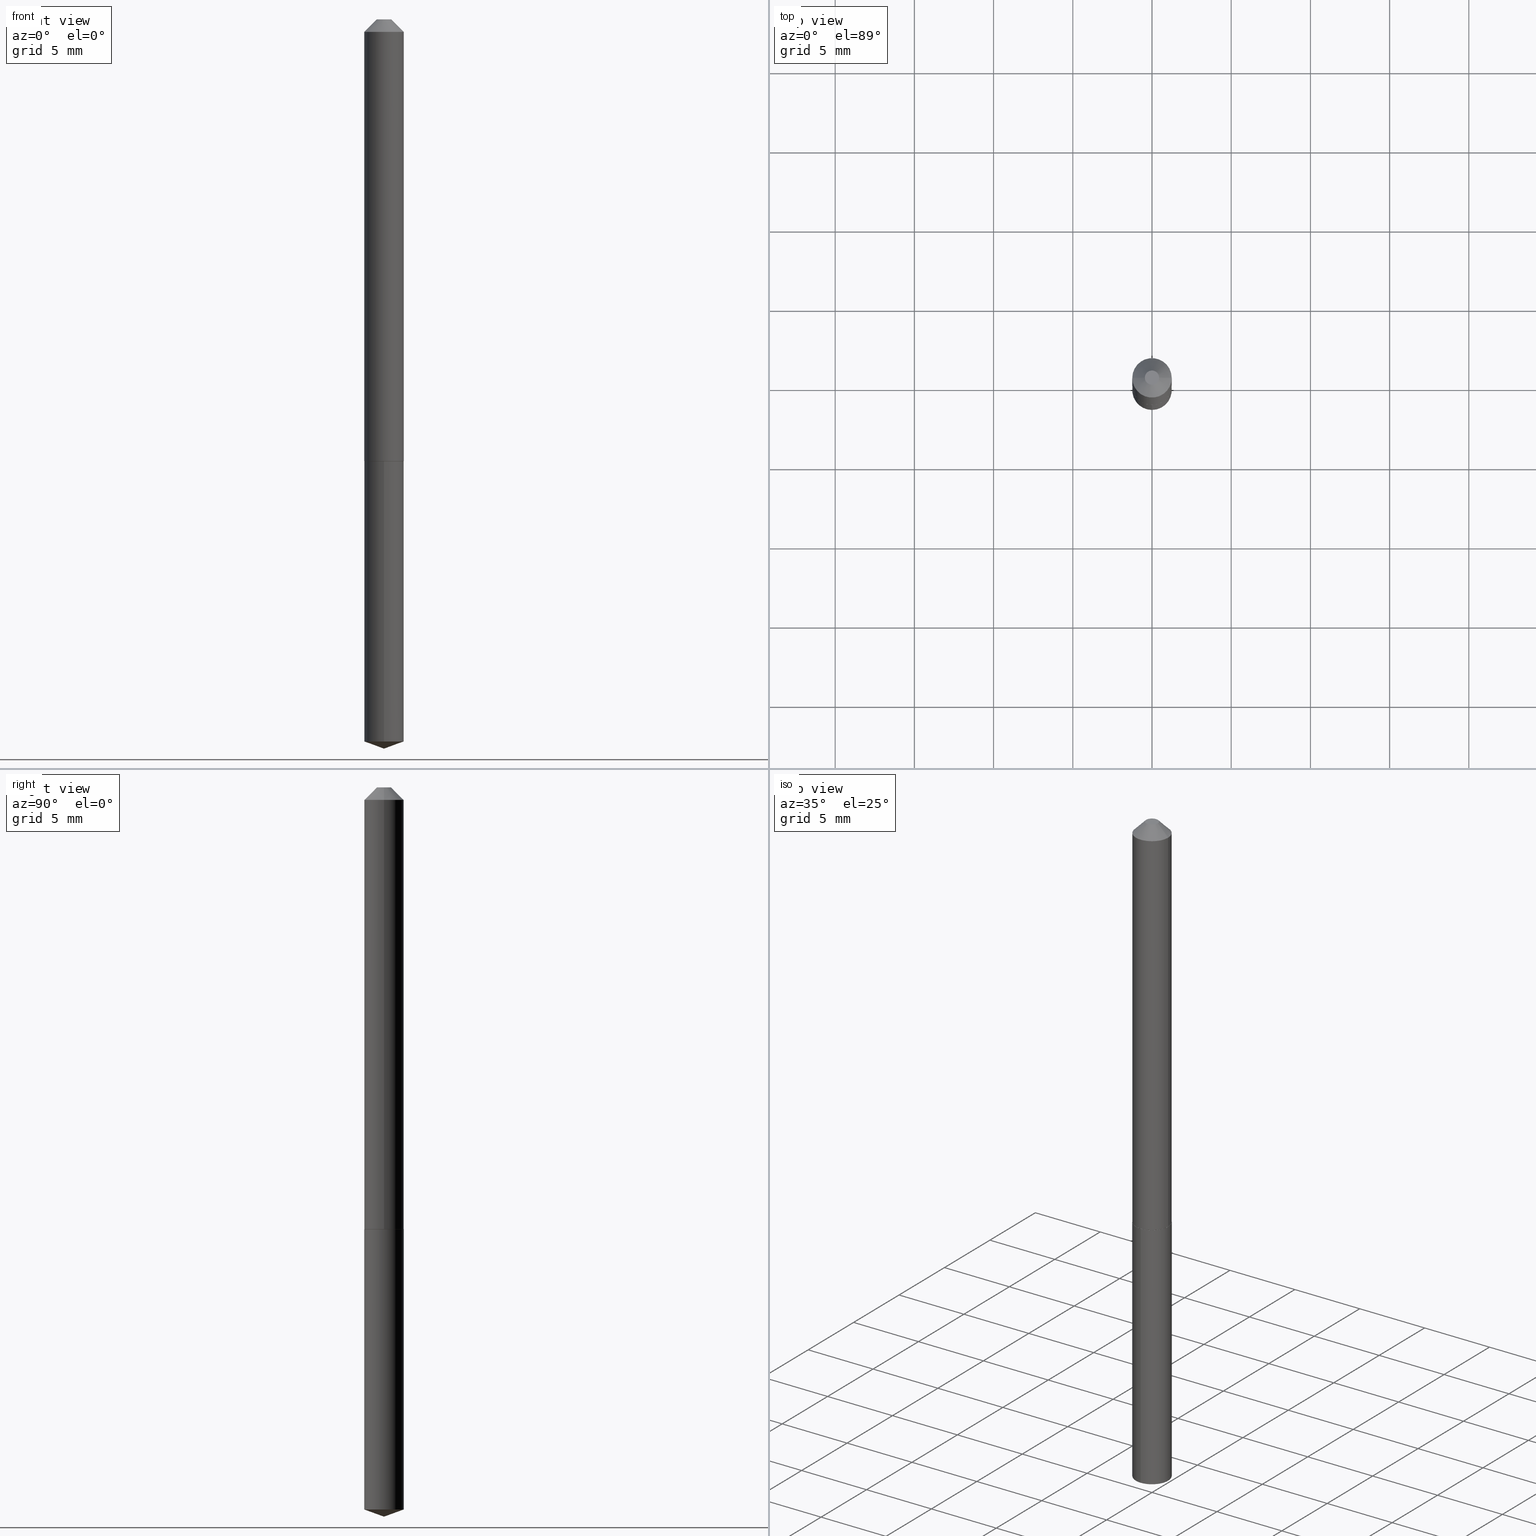
[diagram: canonical four-view strip — front | top / right | iso, engineering-drawing reading convention]
A machine part, canonical four-view strip (front | top / right | iso — engineering-drawing reading convention). The complete STEP part file that produces these views, byte-faithful:
ISO-10303-21;
HEADER;
FILE_DESCRIPTION (( 'STEP AP203' ),
    '1' );
FILE_NAME ('56040.STEP',
    '2024-04-22T19:57:57',
    ( '' ),
    ( '' ),
    'SwSTEP 2.0',
    'SolidWorks 2023',
    '' );
FILE_SCHEMA (( 'CONFIG_CONTROL_DESIGN' ));
ENDSEC;

DATA;
#1 = CIRCLE ( 'NONE', #234, 0.04900000000000000189 ) ;
#2 = ADVANCED_FACE ( 'NONE', ( #137 ), #263, .T. ) ;
#3 = ADVANCED_FACE ( 'NONE', ( #141 ), #42, .T. ) ;
#4 = ORIENTED_EDGE ( 'NONE', *, *, #57, .F. ) ;
#5 = APPLICATION_PROTOCOL_DEFINITION ( 'international standard', 'config_control_design', 1994, #352 ) ;
#6 = CARTESIAN_POINT ( 'NONE',  ( 0.04900000000000000883, -4.512739630454761261E-16, -0.03125000000000020123 ) ) ;
#7 = CIRCLE ( 'NONE', #381, 0.01775000000000000189 ) ;
#8 = DIRECTION ( 'NONE',  ( -2.445468806185136597E-29, 3.491481338843145583E-15, 1.000000000000000000 ) ) ;
#9 = DIRECTION ( 'NONE',  ( -6.982962677686267499E-15, -1.000000000000000000, 3.475157955500608196E-15 ) ) ;
#10 = DIRECTION ( 'NONE',  ( -2.445468806185136597E-29, 3.491481338843145583E-15, 1.000000000000000000 ) ) ;
#11 = ORIENTED_EDGE ( 'NONE', *, *, #184, .F. ) ;
#12 = DIRECTION ( 'NONE',  ( -6.982962677686265922E-15, -1.000000000000000000, 5.575199987069924823E-15 ) ) ;
#13 = AXIS2_PLACEMENT_3D ( 'NONE', #41, #16, #311 ) ;
#14 = CC_DESIGN_APPROVAL ( #323, ( #370 ) ) ;
#15 = VERTEX_POINT ( 'NONE', #312 ) ;
#16 = DIRECTION ( 'NONE',  ( -2.445468108961849086E-29, 3.491482337306576888E-15, 1.000000000000000000 ) ) ;
#17 = CARTESIAN_POINT ( 'NONE',  ( 2.685124749191280284E-29, -3.833646510049774087E-15, -1.098000000000000087 ) ) ;
#18 = CC_DESIGN_DATE_AND_TIME_ASSIGNMENT ( #145, #21, ( #270 ) ) ;
#19 = FACE_OUTER_BOUND ( 'NONE', #224, .T. ) ;
#20 = DIRECTION ( 'NONE',  ( 6.982962677686265922E-15, 1.000000000000000000, -3.491482337306577282E-15 ) ) ;
#21 = DATE_TIME_ROLE ( 'classification_date' ) ;
#22 =( NAMED_UNIT ( * ) PLANE_ANGLE_UNIT ( ) SI_UNIT ( $, .RADIAN. ) );
#23 = ORIENTED_EDGE ( 'NONE', *, *, #276, .T. ) ;
#24 = AXIS2_PLACEMENT_3D ( 'NONE', #67, #214, #128 ) ;
#25 = PRODUCT_DEFINITION_FORMATION_WITH_SPECIFIED_SOURCE ( 'ANY', '', #357, .NOT_KNOWN. ) ;
#26 = CALENDAR_DATE ( 2024, 22, 4 ) ;
#27 = CARTESIAN_POINT ( 'NONE',  ( 0.04900000000000000883, -4.452731937296541456E-16, -0.03125000000000020123 ) ) ;
#28 = CALENDAR_DATE ( 2024, 22, 4 ) ;
#29 = DATE_AND_TIME ( #26, #105 ) ;
#30 = APPLICATION_PROTOCOL_DEFINITION ( 'international standard', 'config_control_design', 1994, #165 ) ;
#31 = CARTESIAN_POINT ( 'NONE',  ( 3.481659405224759258E-16, 0.04899999999999617162, -1.098000000000000309 ) ) ;
#32 = EDGE_CURVE ( 'NONE', #74, #254, #134, .T. ) ;
#33 = AXIS2_PLACEMENT_3D ( 'NONE', #372, #10, #314 ) ;
#34 = AXIS2_PLACEMENT_3D ( 'NONE', #226, #347, #78 ) ;
#35 = APPROVAL ( #261, 'UNSPECIFIED' ) ;
#36 = CARTESIAN_POINT ( 'NONE',  ( 0.04900000000000014067, -4.174065940586980694E-15, -1.097500000000000142 ) ) ;
#37 = ADVANCED_FACE ( 'NONE', ( #107 ), #268, .T. ) ;
#38 = AXIS2_PLACEMENT_3D ( 'NONE', #307, #284, #220 ) ;
#39 = DIRECTION ( 'NONE',  ( -2.445468806185136597E-29, 3.491481338843145583E-15, 1.000000000000000000 ) ) ;
#40 = ORIENTED_EDGE ( 'NONE', *, *, #247, .F. ) ;
#41 = CARTESIAN_POINT ( 'NONE',  ( 2.685124749191280284E-29, -3.833646510049774087E-15, -1.098000000000000087 ) ) ;
#42 = CYLINDRICAL_SURFACE ( 'NONE', #364, 0.04900000000000007822 ) ;
#43 = CARTESIAN_POINT ( 'NONE',  ( 7.642090019328601786E-31, -1.091087918388490144E-16, -0.03125000000000020123 ) ) ;
#44 = AXIS2_PLACEMENT_3D ( 'NONE', #245, #48, #9 ) ;
#45 = ADVANCED_FACE ( 'NONE', ( #305 ), #170, .F. ) ;
#46 = APPROVAL_PERSON_ORGANIZATION ( #365, #323, #387 ) ;
#47 = ORIENTED_EDGE ( 'NONE', *, *, #238, .T. ) ;
#48 = DIRECTION ( 'NONE',  ( -2.445468108961849086E-29, 3.491482337306576888E-15, 1.000000000000000000 ) ) ;
#49 = CARTESIAN_POINT ( 'NONE',  ( 2.246126659432004262E-48, -3.206873584422743567E-34, -9.184850993605186494E-20 ) ) ;
#50 = CARTESIAN_POINT ( 'NONE',  ( -0.04900000000000014067, -3.483734828857902394E-15, -1.097500000000000142 ) ) ;
#51 = VERTEX_POINT ( 'NONE', #151 ) ;
#52 = PERSON_AND_ORGANIZATION ( #361, #282 ) ;
#53 = CARTESIAN_POINT ( 'NONE',  ( 2.685124749191280284E-29, -3.833646510049774087E-15, -1.098000000000000087 ) ) ;
#54 = PERSON_AND_ORGANIZATION ( #361, #282 ) ;
#55 = APPROVAL_DATE_TIME ( #29, #35 ) ;
#56 = DIRECTION ( 'NONE',  ( -2.445468806185136597E-29, 3.491481338843145583E-15, 1.000000000000000000 ) ) ;
#57 = EDGE_CURVE ( 'NONE', #74, #96, #390, .T. ) ;
#58 = CC_DESIGN_APPROVAL ( #354, ( #25 ) ) ;
#59 = UNCERTAINTY_MEASURE_WITH_UNIT (LENGTH_MEASURE( 1.000000000000000082E-05 ), #89, 'distance_accuracy_value', 'NONE');
#60 = ADVANCED_FACE ( 'NONE', ( #321 ), #273, .T. ) ;
#61 = ORIENTED_EDGE ( 'NONE', *, *, #62, .T. ) ;
#62 = EDGE_CURVE ( 'NONE', #51, #66, #144, .T. ) ;
#63 = ORIENTED_EDGE ( 'NONE', *, *, #201, .T. ) ;
#64 = CARTESIAN_POINT ( 'NONE',  ( 4.432410947493351907E-29, -6.328311736368170535E-15, -1.812500000000000222 ) ) ;
#65 = EDGE_LOOP ( 'NONE', ( #368, #371, #129, #40 ) ) ;
#66 = VERTEX_POINT ( 'NONE', #351 ) ;
#67 = CARTESIAN_POINT ( 'NONE',  ( 2.683902014788188043E-29, -3.831900769380352584E-15, -1.097500000000000142 ) ) ;
#68 = CARTESIAN_POINT ( 'NONE',  ( 0.04900000000000007822, -3.421651712066276171E-16, 2.389326620140012644E-30 ) ) ;
#69 = DIRECTION ( 'NONE',  ( -2.445468806185136597E-29, 3.491481338843145583E-15, 1.000000000000000000 ) ) ;
#70 = EDGE_CURVE ( 'NONE', #213, #110, #82, .T. ) ;
#71 = DIRECTION ( 'NONE',  ( 1.000000000000000000, -6.982962677686267499E-15, 4.876164886021178738E-29 ) ) ;
#72 = VERTEX_POINT ( 'NONE', #36 ) ;
#73 = FACE_OUTER_BOUND ( 'NONE', #338, .T. ) ;
#74 = VERTEX_POINT ( 'NONE', #334 ) ;
#75 = CIRCLE ( 'NONE', #121, 0.04900000000000014067 ) ;
#76 = CYLINDRICAL_SURFACE ( 'NONE', #215, 0.04900000000000000189 ) ;
#77 = ORIENTED_EDGE ( 'NONE', *, *, #114, .F. ) ;
#78 = DIRECTION ( 'NONE',  ( -6.982962677686265922E-15, -1.000000000000000000, 2.787599993534962411E-15 ) ) ;
#79 = ORIENTED_EDGE ( 'NONE', *, *, #108, .T. ) ;
#80 = PERSON_AND_ORGANIZATION ( #361, #282 ) ;
#81 = PERSON_AND_ORGANIZATION_ROLE ( 'creator' ) ;
#82 = LINE ( 'NONE', #31, #104 ) ;
#83 = AXIS2_PLACEMENT_3D ( 'NONE', #302, #336, #194 ) ;
#84 = AXIS2_PLACEMENT_3D ( 'NONE', #149, #179, #262 ) ;
#85 = PERSON_AND_ORGANIZATION_ROLE ( 'creator' ) ;
#86 = EDGE_CURVE ( 'NONE', #51, #72, #308, .T. ) ;
#87 = PRODUCT_DEFINITION_SHAPE ( 'NONE', 'NONE',  #370 ) ;
#88 = PERSON_AND_ORGANIZATION ( #361, #282 ) ;
#89 =( CONVERSION_BASED_UNIT ( 'INCH', #292 ) LENGTH_UNIT ( ) NAMED_UNIT ( #385 ) );
#90 = DIRECTION ( 'NONE',  ( -2.438088387897960049E-29, 3.491481338843145188E-15, 1.000000000000000000 ) ) ;
#91 = EDGE_CURVE ( 'NONE', #15, #272, #331, .T. ) ;
#92 = CIRCLE ( 'NONE', #113, 0.04850000000000011247 ) ;
#93 = LOCAL_TIME ( 15, 57, 57.00000000000000000, #291 ) ;
#94 = EDGE_LOOP ( 'NONE', ( #152, #47, #288 ) ) ;
#95 = MANIFOLD_SOLID_BREP ( 'Body-Move/Copy2[2]', #97 ) ;
#96 = VERTEX_POINT ( 'NONE', #6 ) ;
#97 = CLOSED_SHELL ( 'NONE', ( #266, #3, #37, #360, #60, #160, #349, #343 ) ) ;
#98 = EDGE_CURVE ( 'NONE', #66, #96, #257, .T. ) ;
#99 = MANIFOLD_SOLID_BREP ( 'Body-Move/Copy2[1]', #281 ) ;
#100 = CARTESIAN_POINT ( 'NONE',  ( 3.481659405224930342E-16, 0.04899999999999615774, -1.098000000000000309 ) ) ;
#101 = ORIENTED_EDGE ( 'NONE', *, *, #276, .F. ) ;
#102 = CARTESIAN_POINT ( 'NONE',  ( 4.432412492021651000E-29, -6.328309543742475806E-15, -1.812500000000000222 ) ) ;
#103 = ORIENTED_EDGE ( 'NONE', *, *, #32, .F. ) ;
#104 = VECTOR ( 'NONE', #363, 39.37007874015748143 ) ;
#105 = LOCAL_TIME ( 15, 57, 57.00000000000000000, #325 ) ;
#106 = CARTESIAN_POINT ( 'NONE',  ( -0.01775000000000000536, 1.785019834483547303E-16, -9.184850993710916437E-20 ) ) ;
#107 = FACE_OUTER_BOUND ( 'NONE', #157, .T. ) ;
#108 = EDGE_CURVE ( 'NONE', #72, #51, #75, .T. ) ;
#109 = CARTESIAN_POINT ( 'NONE',  ( 2.685124749191280284E-29, -3.833646510049774087E-15, -1.098000000000000087 ) ) ;
#110 = VERTEX_POINT ( 'NONE', #100 ) ;
#111 = DIRECTION ( 'NONE',  ( -0.7071067811865414665, 7.493145998870332072E-15, 0.7071067811865535679 ) ) ;
#112 = ORIENTED_EDGE ( 'NONE', *, *, #86, .F. ) ;
#113 = AXIS2_PLACEMENT_3D ( 'NONE', #109, #167, #341 ) ;
#114 = EDGE_CURVE ( 'NONE', #96, #66, #166, .T. ) ;
#115 = FACE_OUTER_BOUND ( 'NONE', #65, .T. ) ;
#116 = ORIENTED_EDGE ( 'NONE', *, *, #154, .T. ) ;
#117 = FACE_OUTER_BOUND ( 'NONE', #278, .T. ) ;
#118 = CARTESIAN_POINT ( 'NONE',  ( 2.683902014788188043E-29, -3.831900769380352584E-15, -1.097500000000000142 ) ) ;
#119 = APPROVAL_DATE_TIME ( #207, #354 ) ;
#120 = CALENDAR_DATE ( 2024, 22, 4 ) ;
#121 = AXIS2_PLACEMENT_3D ( 'NONE', #156, #242, #367 ) ;
#122 = LINE ( 'NONE', #143, #299 ) ;
#123 = ADVANCED_FACE ( 'NONE', ( #189 ), #337, .T. ) ;
#124 = AXIS2_PLACEMENT_3D ( 'NONE', #43, #39, #275 ) ;
#125 = APPROVAL_PERSON_ORGANIZATION ( #146, #35, #290 ) ;
#126 = VECTOR ( 'NONE', #208, 39.37007874015748143 ) ;
#127 = CC_DESIGN_PERSON_AND_ORGANIZATION_ASSIGNMENT ( #54, #173, ( #270 ) ) ;
#128 = DIRECTION ( 'NONE',  ( 1.000000000000000000, -6.982962677686262766E-15, 0.000000000000000000 ) ) ;
#129 = ORIENTED_EDGE ( 'NONE', *, *, #184, .T. ) ;
#130 = LINE ( 'NONE', #169, #232 ) ;
#131 = DIRECTION ( 'NONE',  ( 6.676917655467994950E-15, 0.9396926207859134239, 0.3420201433256548906 ) ) ;
#132 = CC_DESIGN_PERSON_AND_ORGANIZATION_ASSIGNMENT ( #80, #204, ( #25 ) ) ;
#133 = CARTESIAN_POINT ( 'NONE',  ( 0.000000000000000000, 0.000000000000000000, 0.000000000000000000 ) ) ;
#134 = CIRCLE ( 'NONE', #248, 0.01775000000000000189 ) ;
#135 = APPROVAL_PERSON_ORGANIZATION ( #52, #354, #350 ) ;
#136 = LINE ( 'NONE', #379, #258 ) ;
#137 = FACE_OUTER_BOUND ( 'NONE', #94, .T. ) ;
#138 = CARTESIAN_POINT ( 'NONE',  ( -3.421651712066001549E-16, -0.04900000000000383216, -1.098000000000000087 ) ) ;
#139 = ORIENTED_EDGE ( 'NONE', *, *, #319, .T. ) ;
#140 = CARTESIAN_POINT ( 'NONE',  ( 4.388797910619564098E-29, -6.266041653487281956E-15, -1.794665458520956935 ) ) ;
#141 = FACE_OUTER_BOUND ( 'NONE', #342, .T. ) ;
#142 = EDGE_LOOP ( 'NONE', ( #101, #227, #139, #112 ) ) ;
#143 = CARTESIAN_POINT ( 'NONE',  ( -0.04900000000000000883, 2.330563793677781220E-16, -0.03125000000000020123 ) ) ;
#144 = LINE ( 'NONE', #211, #196 ) ;
#145 = DATE_AND_TIME ( #28, #93 ) ;
#146 = PERSON_AND_ORGANIZATION ( #361, #282 ) ;
#147 = CARTESIAN_POINT ( 'NONE',  ( 0.000000000000000000, 0.000000000000000000, 0.000000000000000000 ) ) ;
#148 = CALENDAR_DATE ( 2024, 22, 4 ) ;
#149 = CARTESIAN_POINT ( 'NONE',  ( 1.123063329716002131E-48, -1.603436792211371783E-34, -4.592425496802593247E-20 ) ) ;
#150 = PERSON_AND_ORGANIZATION ( #361, #282 ) ;
#151 = CARTESIAN_POINT ( 'NONE',  ( -0.04900000000000014067, -3.483734828857902394E-15, -1.097500000000000142 ) ) ;
#152 = ORIENTED_EDGE ( 'NONE', *, *, #91, .F. ) ;
#153 = CC_DESIGN_APPROVAL ( #35, ( #270 ) ) ;
#154 = EDGE_CURVE ( 'NONE', #303, #332, #92, .T. ) ;
#155 = DIRECTION ( 'NONE',  ( -6.561838499445227673E-15, -0.9396926207859109814, 0.3420201433256614409 ) ) ;
#156 = CARTESIAN_POINT ( 'NONE',  ( 2.683902014788188043E-29, -3.831900769380352584E-15, -1.097500000000000142 ) ) ;
#157 = EDGE_LOOP ( 'NONE', ( #116, #23, #188, #271 ) ) ;
#158 = AXIS2_PLACEMENT_3D ( 'NONE', #17, #286, #20 ) ;
#159 =( GEOMETRIC_REPRESENTATION_CONTEXT ( 3 ) GLOBAL_UNCERTAINTY_ASSIGNED_CONTEXT ( ( #59 ) ) GLOBAL_UNIT_ASSIGNED_CONTEXT ( ( #89, #22, #229 ) ) REPRESENTATION_CONTEXT ( 'NONE', 'WORKASPACE' ) );
#160 = ADVANCED_FACE ( 'NONE', ( #73 ), #217, .T. ) ;
#161 = CARTESIAN_POINT ( 'NONE',  ( 2.685124749191280284E-29, -3.833646510049774087E-15, -1.098000000000000087 ) ) ;
#162 = ORIENTED_EDGE ( 'NONE', *, *, #98, .F. ) ;
#163 = CARTESIAN_POINT ( 'NONE',  ( 2.246126659432004262E-48, -3.206873584422743567E-34, -9.184850993605186494E-20 ) ) ;
#164 = ORIENTED_EDGE ( 'NONE', *, *, #91, .T. ) ;
#165 = APPLICATION_CONTEXT ( 'configuration controlled 3d designs of mechanical parts and assemblies' ) ;
#166 = CIRCLE ( 'NONE', #124, 0.04900000000000000883 ) ;
#167 = DIRECTION ( 'NONE',  ( -2.445468806185136597E-29, 3.491481338843145583E-15, 1.000000000000000000 ) ) ;
#168 = ORIENTED_EDGE ( 'NONE', *, *, #238, .F. ) ;
#169 = CARTESIAN_POINT ( 'NONE',  ( -3.421651712066001549E-16, -0.04900000000000383216, -1.098000000000000087 ) ) ;
#170 = PLANE ( 'NONE',  #158 ) ;
#171 =( LENGTH_UNIT ( ) NAMED_UNIT ( * ) SI_UNIT ( $, .METRE. ) );
#172 = ORIENTED_EDGE ( 'NONE', *, *, #333, .T. ) ;
#173 = PERSON_AND_ORGANIZATION_ROLE ( 'classification_officer' ) ;
#174 = EDGE_CURVE ( 'NONE', #213, #272, #318, .T. ) ;
#175 = CIRCLE ( 'NONE', #330, 0.04850000000000011247 ) ;
#176 = SECURITY_CLASSIFICATION_LEVEL ( 'unclassified' ) ;
#177 = CC_DESIGN_DATE_AND_TIME_ASSIGNMENT ( #293, #316, ( #370 ) ) ;
#178 = DIRECTION ( 'NONE',  ( -0.7071067811865453523, 2.468850131082234184E-15, -0.7071067811865496822 ) ) ;
#179 = DIRECTION ( 'NONE',  ( 2.438088387897960049E-29, -3.491481338843145188E-15, -1.000000000000000000 ) ) ;
#180 = APPROVAL_STATUS ( 'not_yet_approved' ) ;
#181 = DIRECTION ( 'NONE',  ( -6.982962677686265922E-15, -1.000000000000000000, 2.787599993534962411E-15 ) ) ;
#182 = DIRECTION ( 'NONE',  ( 1.000000000000000000, -6.982962677686262766E-15, 0.000000000000000000 ) ) ;
#183 = EDGE_LOOP ( 'NONE', ( #380, #222, #240, #11 ) ) ;
#184 = EDGE_CURVE ( 'NONE', #272, #256, #130, .T. ) ;
#185 = PERSON_AND_ORGANIZATION_ROLE ( 'design_owner' ) ;
#186 = VECTOR ( 'NONE', #131, 39.37007874015748143 ) ;
#187 = CC_DESIGN_PERSON_AND_ORGANIZATION_ASSIGNMENT ( #88, #81, ( #25 ) ) ;
#188 = ORIENTED_EDGE ( 'NONE', *, *, #108, .F. ) ;
#189 = FACE_OUTER_BOUND ( 'NONE', #216, .T. ) ;
#190 = ORIENTED_EDGE ( 'NONE', *, *, #383, .F. ) ;
#191 = DIRECTION ( 'NONE',  ( -2.445468806185136877E-29, 3.491481338843145188E-15, 1.000000000000000000 ) ) ;
#192 = DIRECTION ( 'NONE',  ( 1.000000000000000000, -6.982962677686266711E-15, 4.876176775795936353E-29 ) ) ;
#193 = EDGE_CURVE ( 'NONE', #332, #303, #175, .T. ) ;
#194 = DIRECTION ( 'NONE',  ( -6.982962677686265922E-15, -1.000000000000000000, 5.575199987069924823E-15 ) ) ;
#195 = EDGE_LOOP ( 'NONE', ( #274, #218 ) ) ;
#196 = VECTOR ( 'NONE', #231, 39.37007874015748143 ) ;
#197 = CARTESIAN_POINT ( 'NONE',  ( 2.685124749191280284E-29, -3.833646510049774087E-15, -1.098000000000000087 ) ) ;
#198 = CARTESIAN_POINT ( 'NONE',  ( -9.184586029332749749E-28, 1.311316238995736932E-13, 37.55757874015748143 ) ) ;
#199 = DIRECTION ( 'NONE',  ( 2.445468806185136597E-29, -3.491481338843145583E-15, -1.000000000000000000 ) ) ;
#200 = ORIENTED_EDGE ( 'NONE', *, *, #57, .T. ) ;
#201 = EDGE_CURVE ( 'NONE', #72, #96, #277, .T. ) ;
#202 = DATE_AND_TIME ( #148, #237 ) ;
#203 = ADVANCED_FACE ( 'NONE', ( #344 ), #76, .T. ) ;
#204 = PERSON_AND_ORGANIZATION_ROLE ( 'design_supplier' ) ;
#205 = PLANE ( 'NONE',  #84 ) ;
#206 = AXIS2_PLACEMENT_3D ( 'NONE', #230, #382, #181 ) ;
#207 = DATE_AND_TIME ( #322, #355 ) ;
#208 = DIRECTION ( 'NONE',  ( 0.7071067811865453523, -7.319954787623248157E-15, -0.7071067811865496822 ) ) ;
#209 = CARTESIAN_POINT ( 'NONE',  ( 7.642090019328601786E-31, -1.091087918388490144E-16, -0.03125000000000020123 ) ) ;
#210 = VECTOR ( 'NONE', #111, 39.37007874015748143 ) ;
#211 = CARTESIAN_POINT ( 'NONE',  ( -0.04900000000000007822, 3.481659405224496468E-16, -2.410278194224907734E-30 ) ) ;
#212 = CONICAL_SURFACE ( 'NONE', #309, 0.04900000000000000883, 0.7853981633974452814 ) ;
#213 = VERTEX_POINT ( 'NONE', #283 ) ;
#214 = DIRECTION ( 'NONE',  ( -2.445468806185136597E-29, 3.491481338843145583E-15, 1.000000000000000000 ) ) ;
#215 = AXIS2_PLACEMENT_3D ( 'NONE', #197, #375, #306 ) ;
#216 = EDGE_LOOP ( 'NONE', ( #168, #164, #329 ) ) ;
#217 = CYLINDRICAL_SURFACE ( 'NONE', #33, 0.04900000000000007822 ) ;
#218 = ORIENTED_EDGE ( 'NONE', *, *, #32, .T. ) ;
#219 = CARTESIAN_POINT ( 'NONE',  ( 7.642090019328601786E-31, -1.091087918388490144E-16, -0.03125000000000020123 ) ) ;
#220 = DIRECTION ( 'NONE',  ( 1.000000000000000000, -6.982962677686262766E-15, 0.000000000000000000 ) ) ;
#221 = CARTESIAN_POINT ( 'NONE',  ( 0.04850000000000011247, -4.172320199917559190E-15, -1.098000000000000087 ) ) ;
#222 = ORIENTED_EDGE ( 'NONE', *, *, #70, .T. ) ;
#223 = CYLINDRICAL_SURFACE ( 'NONE', #34, 0.04900000000000000189 ) ;
#224 = EDGE_LOOP ( 'NONE', ( #103, #200, #335, #190 ) ) ;
#225 = CONICAL_SURFACE ( 'NONE', #326, 0.04900000000000000883, 0.7853981633974452814 ) ;
#226 = CARTESIAN_POINT ( 'NONE',  ( 2.685124749191280284E-29, -3.833646510049774087E-15, -1.098000000000000087 ) ) ;
#227 = ORIENTED_EDGE ( 'NONE', *, *, #193, .T. ) ;
#228 = COORDINATED_UNIVERSAL_TIME_OFFSET ( 5, 0, .BEHIND. ) ;
#229 =( NAMED_UNIT ( * ) SI_UNIT ( $, .STERADIAN. ) SOLID_ANGLE_UNIT ( ) );
#230 = CARTESIAN_POINT ( 'NONE',  ( 2.685124749191280284E-29, -3.833646510049774087E-15, -1.098000000000000087 ) ) ;
#231 = DIRECTION ( 'NONE',  ( -2.445468806185136877E-29, 3.491481338843145188E-15, 1.000000000000000000 ) ) ;
#232 = VECTOR ( 'NONE', #304, 39.37007874015748143 ) ;
#233 = FACE_OUTER_BOUND ( 'NONE', #315, .T. ) ;
#234 = AXIS2_PLACEMENT_3D ( 'NONE', #140, #255, #12 ) ;
#235 = CARTESIAN_POINT ( 'NONE',  ( -0.04850000000000011247, -3.486384056032013595E-15, -1.098000000000000087 ) ) ;
#236 = AXIS2_PLACEMENT_3D ( 'NONE', #198, #340, #251 ) ;
#237 = LOCAL_TIME ( 15, 57, 57.00000000000000000, #228 ) ;
#238 = EDGE_CURVE ( 'NONE', #15, #213, #369, .T. ) ;
#239 = CC_DESIGN_PERSON_AND_ORGANIZATION_ASSIGNMENT ( #150, #185, ( #357 ) ) ;
#240 = ORIENTED_EDGE ( 'NONE', *, *, #333, .F. ) ;
#241 = CARTESIAN_POINT ( 'NONE',  ( 7.642090019328601786E-31, -1.091087918388490144E-16, -0.03125000000000020123 ) ) ;
#242 = DIRECTION ( 'NONE',  ( -2.445468806185136597E-29, 3.491481338843145583E-15, 1.000000000000000000 ) ) ;
#243 = ORIENTED_EDGE ( 'NONE', *, *, #201, .F. ) ;
#244 = DIRECTION ( 'NONE',  ( 1.000000000000000000, -6.982962677686266711E-15, 0.000000000000000000 ) ) ;
#245 = CARTESIAN_POINT ( 'NONE',  ( -9.184586029332749749E-28, 1.311316238995736932E-13, 37.55757874015748143 ) ) ;
#246 = ORIENTED_EDGE ( 'NONE', *, *, #383, .T. ) ;
#247 = EDGE_CURVE ( 'NONE', #110, #256, #298, .T. ) ;
#248 = AXIS2_PLACEMENT_3D ( 'NONE', #49, #376, #374 ) ;
#249 = AXIS2_PLACEMENT_3D ( 'NONE', #53, #90, #260 ) ;
#250 = DIRECTION ( 'NONE',  ( 0.7071067811865414665, -2.468850131082193557E-15, 0.7071067811865535679 ) ) ;
#251 = DIRECTION ( 'NONE',  ( -6.982962677686267499E-15, -1.000000000000000000, 3.475157955500608196E-15 ) ) ;
#252 = PRODUCT_RELATED_PRODUCT_CATEGORY ( 'detail', '', ( #357 ) ) ;
#253 = DIRECTION ( 'NONE',  ( -1.000000000000000000, 6.982962677686267499E-15, 0.000000000000000000 ) ) ;
#254 = VERTEX_POINT ( 'NONE', #106 ) ;
#255 = DIRECTION ( 'NONE',  ( -2.445468108961849086E-29, 3.491482337306576888E-15, 1.000000000000000000 ) ) ;
#256 = VERTEX_POINT ( 'NONE', #138 ) ;
#257 = CIRCLE ( 'NONE', #362, 0.04900000000000000883 ) ;
#258 = VECTOR ( 'NONE', #250, 39.37007874015748143 ) ;
#259 = ORIENTED_EDGE ( 'NONE', *, *, #269, .F. ) ;
#260 = DIRECTION ( 'NONE',  ( 1.000000000000000000, -6.982962677686265922E-15, 4.876176775795935793E-29 ) ) ;
#261 = APPROVAL_STATUS ( 'not_yet_approved' ) ;
#262 = DIRECTION ( 'NONE',  ( -1.000000000000000000, 6.982962677686265922E-15, -4.876176775795935793E-29 ) ) ;
#263 = CONICAL_SURFACE ( 'NONE', #236, 108.1684023407369466, 1.221730476396041931 ) ;
#264 = DIRECTION ( 'NONE',  ( 0.000000000000000000, 0.000000000000000000, 1.000000000000000000 ) ) ;
#265 = LOCAL_TIME ( 15, 57, 57.00000000000000000, #386 ) ;
#266 = ADVANCED_FACE ( 'NONE', ( #19 ), #225, .T. ) ;
#267 = MECHANICAL_CONTEXT ( 'NONE', #165, 'mechanical' ) ;
#268 = CONICAL_SURFACE ( 'NONE', #38, 0.04900000000000014067, 0.7853981633974397303 ) ;
#269 = EDGE_CURVE ( 'NONE', #254, #74, #7, .T. ) ;
#270 = SECURITY_CLASSIFICATION ( '', '', #176 ) ;
#271 = ORIENTED_EDGE ( 'NONE', *, *, #319, .F. ) ;
#272 = VERTEX_POINT ( 'NONE', #377 ) ;
#273 = CONICAL_SURFACE ( 'NONE', #353, 0.04900000000000014067, 0.7853981633974397303 ) ;
#274 = ORIENTED_EDGE ( 'NONE', *, *, #269, .T. ) ;
#275 = DIRECTION ( 'NONE',  ( 1.000000000000000000, -6.982962677686267499E-15, 0.000000000000000000 ) ) ;
#276 = EDGE_CURVE ( 'NONE', #332, #51, #279, .T. ) ;
#277 = LINE ( 'NONE', #68, #346 ) ;
#278 = EDGE_LOOP ( 'NONE', ( #345, #328 ) ) ;
#279 = LINE ( 'NONE', #50, #210 ) ;
#280 = ORIENTED_EDGE ( 'NONE', *, *, #98, .T. ) ;
#281 = CLOSED_SHELL ( 'NONE', ( #203, #2, #123, #327, #45 ) ) ;
#282 = ORGANIZATION ( 'UNSPECIFIED', 'UNSPECIFIED', '' ) ;
#283 = CARTESIAN_POINT ( 'NONE',  ( 3.481659405224928370E-16, 0.04899999999999372913, -1.794665458520957158 ) ) ;
#284 = DIRECTION ( 'NONE',  ( -2.445468806185136597E-29, 3.491481338843145583E-15, 1.000000000000000000 ) ) ;
#285 = DIRECTION ( 'NONE',  ( -2.445468806185136597E-29, 3.491481338843145583E-15, 1.000000000000000000 ) ) ;
#286 = DIRECTION ( 'NONE',  ( 2.445468108961848526E-29, -3.491482337306577282E-15, -1.000000000000000000 ) ) ;
#287 = FACE_OUTER_BOUND ( 'NONE', #195, .T. ) ;
#288 = ORIENTED_EDGE ( 'NONE', *, *, #313, .F. ) ;
#289 = VECTOR ( 'NONE', #155, 39.37007874015748143 ) ;
#290 = APPROVAL_ROLE ( '' ) ;
#291 = COORDINATED_UNIVERSAL_TIME_OFFSET ( 5, 0, .BEHIND. ) ;
#292 = LENGTH_MEASURE_WITH_UNIT ( LENGTH_MEASURE( 0.02539999999999999897 ), #171 );
#293 = DATE_AND_TIME ( #120, #265 ) ;
#294 = DESIGN_CONTEXT ( 'detailed design', #352, 'design' ) ;
#295 = SHAPE_DEFINITION_REPRESENTATION ( #87, #373 ) ;
#296 = CIRCLE ( 'NONE', #206, 0.04900000000000000189 ) ;
#297 = CC_DESIGN_PERSON_AND_ORGANIZATION_ASSIGNMENT ( #358, #85, ( #370 ) ) ;
#298 = CIRCLE ( 'NONE', #13, 0.04900000000000000189 ) ;
#299 = VECTOR ( 'NONE', #178, 39.37007874015748143 ) ;
#300 = ORIENTED_EDGE ( 'NONE', *, *, #62, .F. ) ;
#301 = CC_DESIGN_SECURITY_CLASSIFICATION ( #270, ( #25 ) ) ;
#302 = CARTESIAN_POINT ( 'NONE',  ( 4.388797910619564098E-29, -6.266041653487281956E-15, -1.794665458520956935 ) ) ;
#303 = VERTEX_POINT ( 'NONE', #221 ) ;
#304 = DIRECTION ( 'NONE',  ( -2.445468108961849086E-29, 3.491482337306577282E-15, 1.000000000000000000 ) ) ;
#305 = FACE_OUTER_BOUND ( 'NONE', #378, .T. ) ;
#306 = DIRECTION ( 'NONE',  ( -6.982962677686265922E-15, -1.000000000000000000, 2.787599993534962411E-15 ) ) ;
#307 = CARTESIAN_POINT ( 'NONE',  ( 2.683902014788188043E-29, -3.831900769380352584E-15, -1.097500000000000142 ) ) ;
#308 = CIRCLE ( 'NONE', #24, 0.04900000000000014067 ) ;
#309 = AXIS2_PLACEMENT_3D ( 'NONE', #209, #359, #320 ) ;
#310 = APPROVAL_STATUS ( 'not_yet_approved' ) ;
#311 = DIRECTION ( 'NONE',  ( -6.982962677686265922E-15, -1.000000000000000000, 2.787599993534962411E-15 ) ) ;
#312 = CARTESIAN_POINT ( 'NONE',  ( 4.432410947493351907E-29, -6.328311736368171324E-15, -1.812500000000000222 ) ) ;
#313 = EDGE_CURVE ( 'NONE', #272, #213, #1, .T. ) ;
#314 = DIRECTION ( 'NONE',  ( 1.000000000000000000, -6.982962677686266711E-15, 4.876176775795936353E-29 ) ) ;
#315 = EDGE_LOOP ( 'NONE', ( #4, #259, #246, #280 ) ) ;
#316 = DATE_TIME_ROLE ( 'creation_date' ) ;
#317 = DIRECTION ( 'NONE',  ( 1.000000000000000000, 0.000000000000000000, 0.000000000000000000 ) ) ;
#318 = CIRCLE ( 'NONE', #83, 0.04900000000000000189 ) ;
#319 = EDGE_CURVE ( 'NONE', #303, #72, #136, .T. ) ;
#320 = DIRECTION ( 'NONE',  ( -1.000000000000000000, 6.982962677686267499E-15, 0.000000000000000000 ) ) ;
#321 = FACE_OUTER_BOUND ( 'NONE', #142, .T. ) ;
#322 = CALENDAR_DATE ( 2024, 22, 4 ) ;
#323 = APPROVAL ( #310, 'UNSPECIFIED' ) ;
#324 = PLANE ( 'NONE',  #249 ) ;
#325 = COORDINATED_UNIVERSAL_TIME_OFFSET ( 5, 0, .BEHIND. ) ;
#326 = AXIS2_PLACEMENT_3D ( 'NONE', #219, #199, #253 ) ;
#327 = ADVANCED_FACE ( 'NONE', ( #115 ), #223, .T. ) ;
#328 = ORIENTED_EDGE ( 'NONE', *, *, #193, .F. ) ;
#329 = ORIENTED_EDGE ( 'NONE', *, *, #174, .F. ) ;
#330 = AXIS2_PLACEMENT_3D ( 'NONE', #161, #285, #244 ) ;
#331 = LINE ( 'NONE', #64, #289 ) ;
#332 = VERTEX_POINT ( 'NONE', #235 ) ;
#333 = EDGE_CURVE ( 'NONE', #256, #110, #296, .T. ) ;
#334 = CARTESIAN_POINT ( 'NONE',  ( 0.01775000000000000536, -2.835235165950494639E-16, -9.184850993462789252E-20 ) ) ;
#335 = ORIENTED_EDGE ( 'NONE', *, *, #114, .T. ) ;
#336 = DIRECTION ( 'NONE',  ( -2.445468108961849086E-29, 3.491482337306576888E-15, 1.000000000000000000 ) ) ;
#337 = CONICAL_SURFACE ( 'NONE', #44, 108.1684023407369466, 1.221730476396041931 ) ;
#338 = EDGE_LOOP ( 'NONE', ( #300, #348, #63, #162 ) ) ;
#339 = DIRECTION ( 'NONE',  ( -2.445468806185136597E-29, 3.491481338843145583E-15, 1.000000000000000000 ) ) ;
#340 = DIRECTION ( 'NONE',  ( -2.445468108961849086E-29, 3.491482337306576888E-15, 1.000000000000000000 ) ) ;
#341 = DIRECTION ( 'NONE',  ( 1.000000000000000000, -6.982962677686266711E-15, 0.000000000000000000 ) ) ;
#342 = EDGE_LOOP ( 'NONE', ( #79, #61, #77, #243 ) ) ;
#343 = ADVANCED_FACE ( 'NONE', ( #287 ), #205, .F. ) ;
#344 = FACE_OUTER_BOUND ( 'NONE', #183, .T. ) ;
#345 = ORIENTED_EDGE ( 'NONE', *, *, #154, .F. ) ;
#346 = VECTOR ( 'NONE', #191, 39.37007874015748143 ) ;
#347 = DIRECTION ( 'NONE',  ( -2.445468108961849086E-29, 3.491482337306576888E-15, 1.000000000000000000 ) ) ;
#348 = ORIENTED_EDGE ( 'NONE', *, *, #86, .T. ) ;
#349 = ADVANCED_FACE ( 'NONE', ( #233 ), #212, .T. ) ;
#350 = APPROVAL_ROLE ( '' ) ;
#351 = CARTESIAN_POINT ( 'NONE',  ( -0.04900000000000000883, -1.622338840087150061E-15, -0.03125000000000020123 ) ) ;
#352 = APPLICATION_CONTEXT ( 'configuration controlled 3d designs of mechanical parts and assemblies' ) ;
#353 = AXIS2_PLACEMENT_3D ( 'NONE', #118, #56, #182 ) ;
#354 = APPROVAL ( #180, 'UNSPECIFIED' ) ;
#355 = LOCAL_TIME ( 15, 57, 57.00000000000000000, #389 ) ;
#356 = APPROVAL_DATE_TIME ( #202, #323 ) ;
#357 = PRODUCT ( '56040', '56040', '', ( #267 ) ) ;
#358 = PERSON_AND_ORGANIZATION ( #361, #282 ) ;
#359 = DIRECTION ( 'NONE',  ( 2.445468806185136597E-29, -3.491481338843145583E-15, -1.000000000000000000 ) ) ;
#360 = ADVANCED_FACE ( 'NONE', ( #117 ), #324, .F. ) ;
#361 = PERSON ( 'UNSPECIFIED', 'UNSPECIFIED', 'UNSPECIFIED', ('UNSPECIFIED'), ('UNSPECIFIED'), ('UNSPECIFIED') ) ;
#362 = AXIS2_PLACEMENT_3D ( 'NONE', #241, #8, #366 ) ;
#363 = DIRECTION ( 'NONE',  ( -2.445468108961849086E-29, 3.491482337306577282E-15, 1.000000000000000000 ) ) ;
#364 = AXIS2_PLACEMENT_3D ( 'NONE', #133, #69, #192 ) ;
#365 = PERSON_AND_ORGANIZATION ( #361, #282 ) ;
#366 = DIRECTION ( 'NONE',  ( 1.000000000000000000, -6.982962677686267499E-15, 0.000000000000000000 ) ) ;
#367 = DIRECTION ( 'NONE',  ( 1.000000000000000000, -6.982962677686262766E-15, 0.000000000000000000 ) ) ;
#368 = ORIENTED_EDGE ( 'NONE', *, *, #70, .F. ) ;
#369 = LINE ( 'NONE', #102, #186 ) ;
#370 = PRODUCT_DEFINITION ( 'UNKNOWN', '', #25, #294 ) ;
#371 = ORIENTED_EDGE ( 'NONE', *, *, #174, .T. ) ;
#372 = CARTESIAN_POINT ( 'NONE',  ( 0.000000000000000000, 0.000000000000000000, 0.000000000000000000 ) ) ;
#373 = ADVANCED_BREP_SHAPE_REPRESENTATION ( '56040', ( #99, #95, #388 ), #159 ) ;
#374 = DIRECTION ( 'NONE',  ( 1.000000000000000000, -6.982962677686267499E-15, 4.876164886021178738E-29 ) ) ;
#375 = DIRECTION ( 'NONE',  ( -2.445468108961849086E-29, 3.491482337306576888E-15, 1.000000000000000000 ) ) ;
#376 = DIRECTION ( 'NONE',  ( -2.445468806185136597E-29, 3.491481338843145583E-15, 1.000000000000000000 ) ) ;
#377 = CARTESIAN_POINT ( 'NONE',  ( -3.421651712065830464E-16, -0.04900000000000625383, -1.794665458520956491 ) ) ;
#378 = EDGE_LOOP ( 'NONE', ( #172, #384 ) ) ;
#379 = CARTESIAN_POINT ( 'NONE',  ( 0.04900000000000014067, -4.174065940586980694E-15, -1.097500000000000142 ) ) ;
#380 = ORIENTED_EDGE ( 'NONE', *, *, #313, .T. ) ;
#381 = AXIS2_PLACEMENT_3D ( 'NONE', #163, #339, #71 ) ;
#382 = DIRECTION ( 'NONE',  ( -2.445468108961849086E-29, 3.491482337306576888E-15, 1.000000000000000000 ) ) ;
#383 = EDGE_CURVE ( 'NONE', #254, #66, #122, .T. ) ;
#384 = ORIENTED_EDGE ( 'NONE', *, *, #247, .T. ) ;
#385 = DIMENSIONAL_EXPONENTS ( 1.000000000000000000, 0.000000000000000000, 0.000000000000000000, 0.000000000000000000, 0.000000000000000000, 0.000000000000000000, 0.000000000000000000 ) ;
#386 = COORDINATED_UNIVERSAL_TIME_OFFSET ( 5, 0, .BEHIND. ) ;
#387 = APPROVAL_ROLE ( '' ) ;
#388 = AXIS2_PLACEMENT_3D ( 'NONE', #147, #264, #317 ) ;
#389 = COORDINATED_UNIVERSAL_TIME_OFFSET ( 5, 0, .BEHIND. ) ;
#390 = LINE ( 'NONE', #27, #126 ) ;
ENDSEC;
END-ISO-10303-21;
